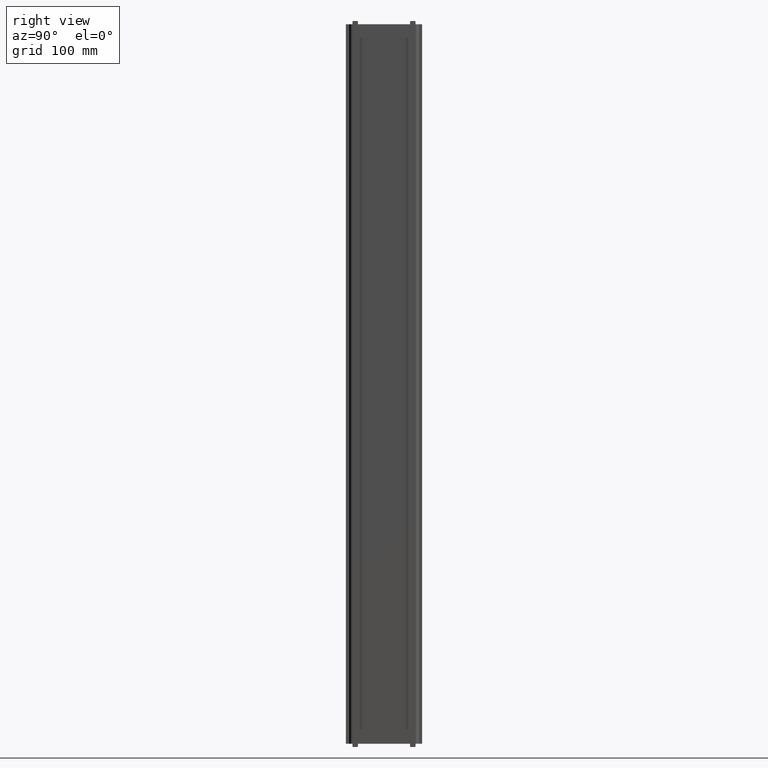
[diagram: clean part render]
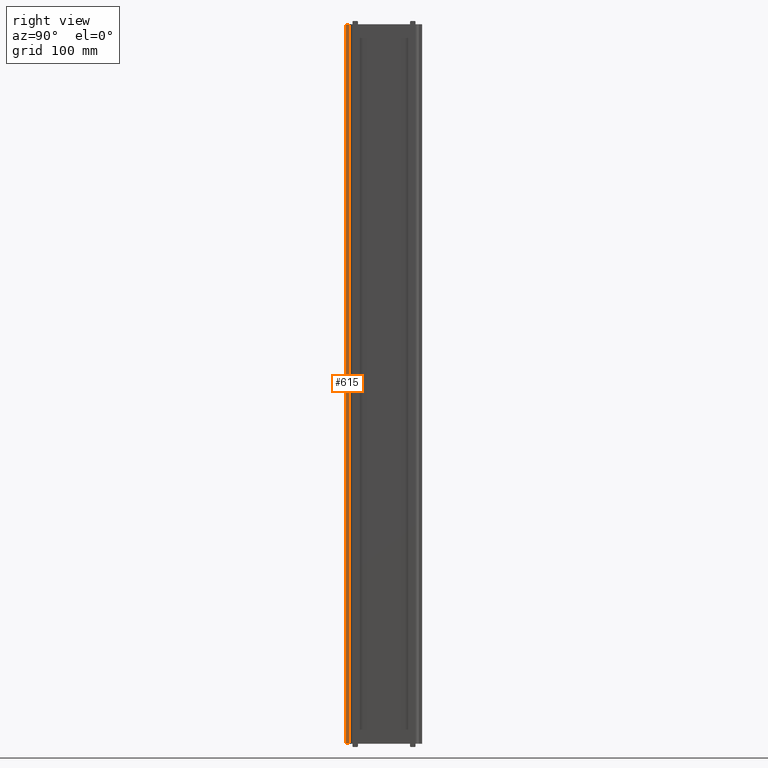
[diagram: same view with one face highlighted and labeled with its STEP entity id]
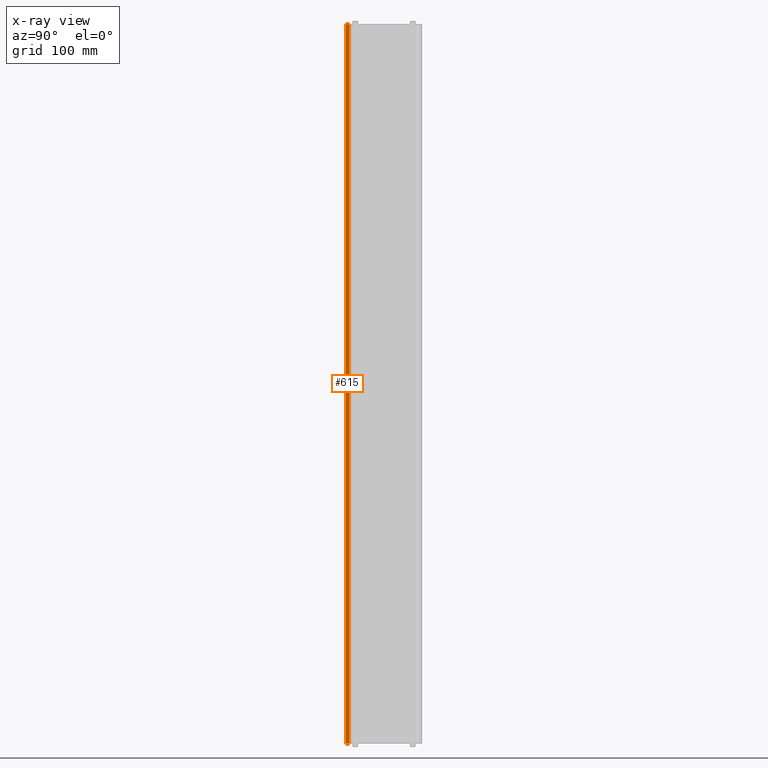
[diagram: x-ray of the same camera — body ghosted, the highlighted face saturated]
A machine part, right view. The second image highlights one B-rep face of the part: STEP entity #615.
The next image is the same camera in x-ray: the body ghosted, the highlighted face saturated — about 0% of this face is hidden behind the body in this view.
In plain terms, the highlighted planar face has unit normal (1, 0, 0).
Its self-contained STEP definition (entity closure, byte-faithful):
#16 = CARTESIAN_POINT ( 'NONE',  ( -309.9999999999996021, -1163.305262667903889, 25.00000000000045119 ) ) ;
#100 = LINE ( 'NONE', #981, #867 ) ;
#162 = LINE ( 'NONE', #245, #299 ) ;
#168 = EDGE_CURVE ( 'NONE', #977, #741, #100, .T. ) ;
#209 = CARTESIAN_POINT ( 'NONE',  ( -309.9999999999996021, -1163.305262667903889, -624.9999999999997726 ) ) ;
#245 = CARTESIAN_POINT ( 'NONE',  ( -309.9999999999996021, -1166.305262667903889, 104.7558775263622834 ) ) ;
#263 = ORIENTED_EDGE ( 'NONE', *, *, #761, .F. ) ;
#279 = VECTOR ( 'NONE', #512, 1000.000000000000000 ) ;
#299 = VECTOR ( 'NONE', #567, 1000.000000000000000 ) ;
#450 = LINE ( 'NONE', #458, #469 ) ;
#458 = CARTESIAN_POINT ( 'NONE',  ( -309.9999999999996021, -1163.305262667903889, -624.9999999999997726 ) ) ;
#469 = VECTOR ( 'NONE', #1137, 1000.000000000000000 ) ;
#512 = DIRECTION ( 'NONE',  ( -5.551115123125788224E-15, 1.000000000000000000, -0.000000000000000000 ) ) ;
#567 = DIRECTION ( 'NONE',  ( 0.000000000000000000, -0.000000000000000000, -1.000000000000000000 ) ) ;
#590 = DIRECTION ( 'NONE',  ( 1.000000000000000000, 5.551115123125788224E-15, 0.000000000000000000 ) ) ;
#615 = ADVANCED_FACE ( 'NONE', ( #793 ), #1292, .T. ) ;
#703 = ORIENTED_EDGE ( 'NONE', *, *, #168, .F. ) ;
#732 = LINE ( 'NONE', #16, #279 ) ;
#741 = VERTEX_POINT ( 'NONE', #209 ) ;
#761 = EDGE_CURVE ( 'NONE', #1291, #977, #732, .T. ) ;
#769 = EDGE_LOOP ( 'NONE', ( #263, #1142, #803, #703 ) ) ;
#793 = FACE_OUTER_BOUND ( 'NONE', #769, .T. ) ;
#803 = ORIENTED_EDGE ( 'NONE', *, *, #953, .T. ) ;
#867 = VECTOR ( 'NONE', #889, 1000.000000000000000 ) ;
#889 = DIRECTION ( 'NONE',  ( 0.000000000000000000, -0.000000000000000000, -1.000000000000000000 ) ) ;
#895 = DIRECTION ( 'NONE',  ( -0.000000000000000000, 0.000000000000000000, 1.000000000000000000 ) ) ;
#926 = VERTEX_POINT ( 'NONE', #1024 ) ;
#953 = EDGE_CURVE ( 'NONE', #926, #741, #450, .T. ) ;
#977 = VERTEX_POINT ( 'NONE', #1252 ) ;
#981 = CARTESIAN_POINT ( 'NONE',  ( -309.9999999999996021, -1163.305262667903889, 104.7558775263622834 ) ) ;
#1024 = CARTESIAN_POINT ( 'NONE',  ( -309.9999999999996021, -1166.305262667903889, -624.9999999999997726 ) ) ;
#1063 = AXIS2_PLACEMENT_3D ( 'NONE', #1188, #590, #895 ) ;
#1066 = CARTESIAN_POINT ( 'NONE',  ( -309.9999999999996021, -1166.305262667903889, 25.00000000000045119 ) ) ;
#1137 = DIRECTION ( 'NONE',  ( -5.551115123125788224E-15, 1.000000000000000000, -0.000000000000000000 ) ) ;
#1142 = ORIENTED_EDGE ( 'NONE', *, *, #1192, .T. ) ;
#1188 = CARTESIAN_POINT ( 'NONE',  ( -309.9999999999996021, -1163.305262667903889, 104.7558775263622834 ) ) ;
#1192 = EDGE_CURVE ( 'NONE', #1291, #926, #162, .T. ) ;
#1252 = CARTESIAN_POINT ( 'NONE',  ( -309.9999999999996021, -1163.305262667903889, 25.00000000000045119 ) ) ;
#1291 = VERTEX_POINT ( 'NONE', #1066 ) ;
#1292 = PLANE ( 'NONE',  #1063 ) ;